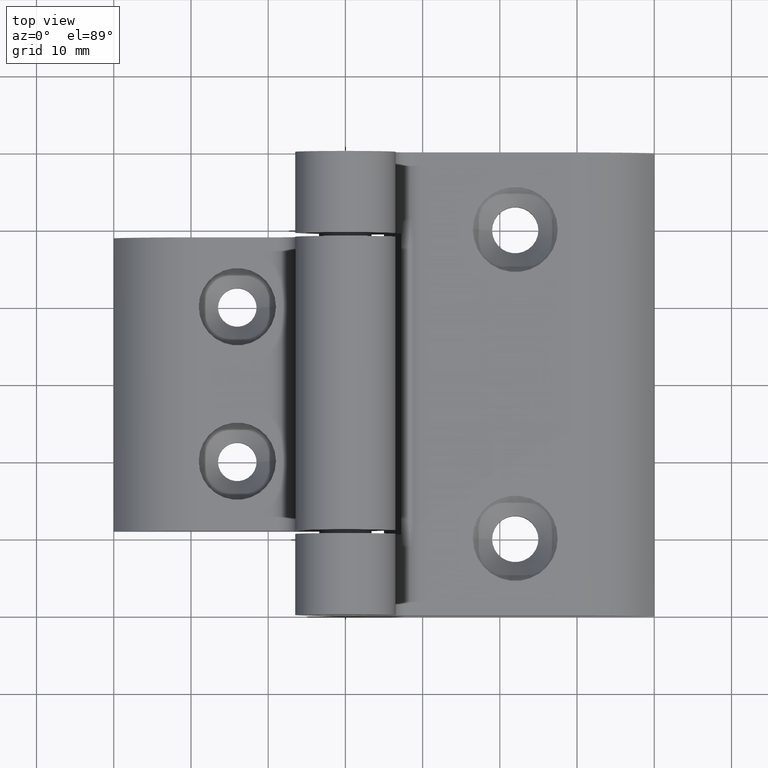
[diagram: clean part render]
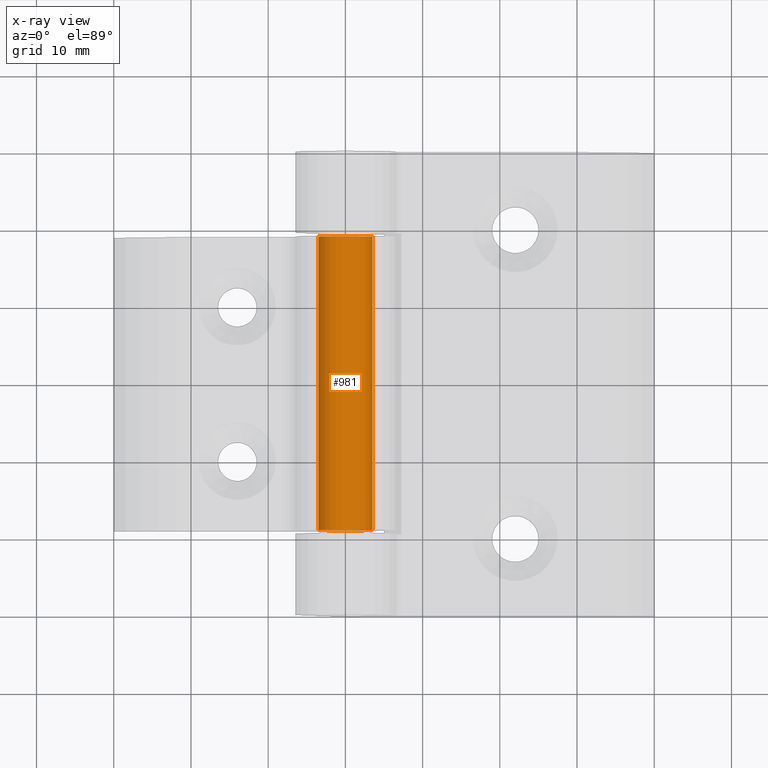
[diagram: x-ray — body ghosted, one internal face saturated and labeled with its STEP entity id]
A machine part, top view, then the same camera in x-ray: the body is ghosted and one INTERNAL B-rep face — a face not visible from any outside direction — is saturated and labeled: STEP entity #981.
In plain terms, the highlighted cylindrical surface (bore or boss wall) has radius 3.5 mm, axis along (-0, -1, -0).
Its self-contained STEP definition (entity closure, byte-faithful):
#101=CYLINDRICAL_SURFACE('',#1165,3.5);
#138=FACE_OUTER_BOUND('',#195,.T.);
#195=EDGE_LOOP('',(#851,#852,#853,#854,#855));
#266=LINE('',#1761,#333);
#333=VECTOR('',#1416,3.5);
#397=CIRCLE('',#1166,3.5);
#398=CIRCLE('',#1167,3.5);
#399=CIRCLE('',#1168,3.5);
#485=VERTEX_POINT('',#1756);
#486=VERTEX_POINT('',#1757);
#487=VERTEX_POINT('',#1760);
#615=EDGE_CURVE('',#485,#486,#397,.T.);
#616=EDGE_CURVE('',#486,#485,#398,.T.);
#617=EDGE_CURVE('',#486,#487,#266,.T.);
#618=EDGE_CURVE('',#487,#487,#399,.T.);
#851=ORIENTED_EDGE('',*,*,#615,.F.);
#852=ORIENTED_EDGE('',*,*,#616,.F.);
#853=ORIENTED_EDGE('',*,*,#617,.T.);
#854=ORIENTED_EDGE('',*,*,#618,.F.);
#855=ORIENTED_EDGE('',*,*,#617,.F.);
#981=ADVANCED_FACE('',(#138),#101,.F.);
#1165=AXIS2_PLACEMENT_3D('',#1755,#1410,#1411);
#1166=AXIS2_PLACEMENT_3D('',#1758,#1412,#1413);
#1167=AXIS2_PLACEMENT_3D('',#1759,#1414,#1415);
#1168=AXIS2_PLACEMENT_3D('',#1762,#1417,#1418);
#1410=DIRECTION('center_axis',(0.,1.,0.));
#1411=DIRECTION('ref_axis',(-1.,0.,0.));
#1412=DIRECTION('center_axis',(0.,-1.,0.));
#1413=DIRECTION('ref_axis',(-1.,0.,0.));
#1414=DIRECTION('center_axis',(0.,-1.,0.));
#1415=DIRECTION('ref_axis',(-1.,0.,0.));
#1416=DIRECTION('',(0.,-1.,0.));
#1417=DIRECTION('center_axis',(0.,1.,0.));
#1418=DIRECTION('ref_axis',(-1.,0.,0.));
#1755=CARTESIAN_POINT('Origin',(0.,-38.0279787611408,-1.38777878078145E-15));
#1756=CARTESIAN_POINT('',(-3.5,19.,-1.38777878078145E-15));
#1757=CARTESIAN_POINT('',(3.5,19.,-1.81640516048302E-15));
#1758=CARTESIAN_POINT('Origin',(0.,19.,-1.38777878078145E-15));
#1759=CARTESIAN_POINT('Origin',(0.,19.,-1.38777878078145E-15));
#1760=CARTESIAN_POINT('',(3.5,-19.,-1.81640516048302E-15));
#1761=CARTESIAN_POINT('',(3.5,-38.0279787611408,-1.81640516048302E-15));
#1762=CARTESIAN_POINT('Origin',(0.,-19.,-1.38777878078145E-15));